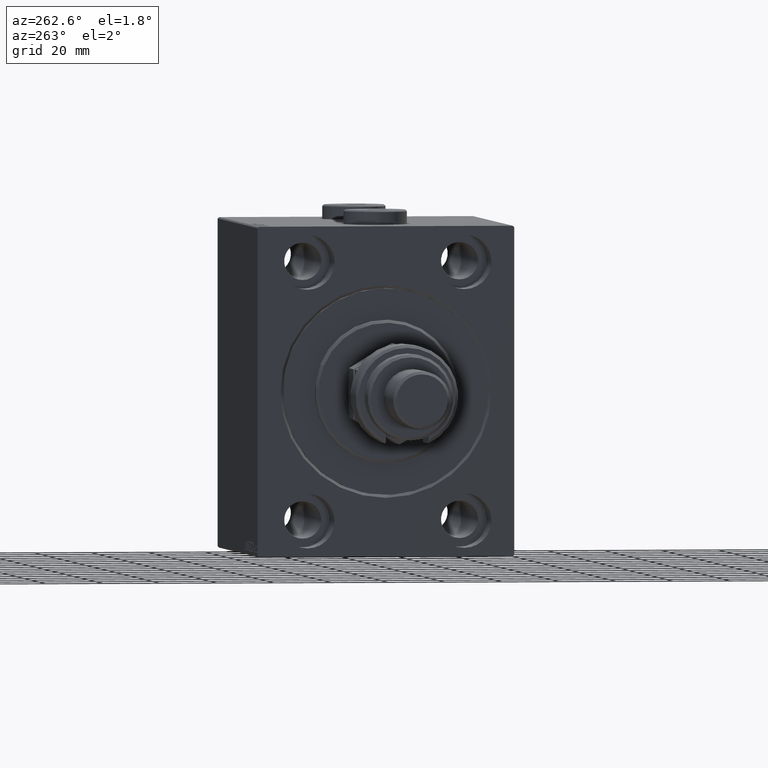
[diagram: clean part render]
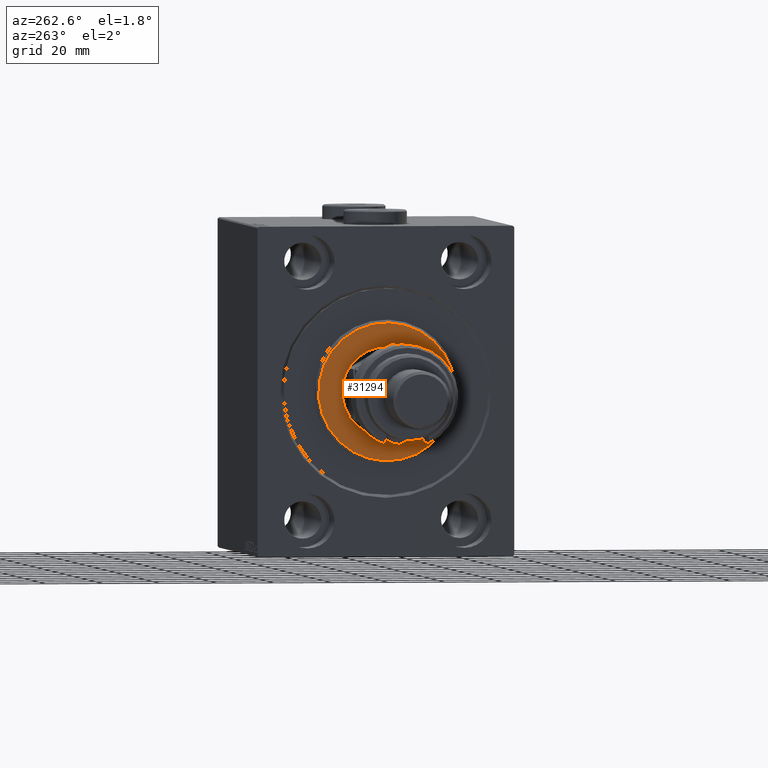
[diagram: same view with one face highlighted and labeled with its STEP entity id]
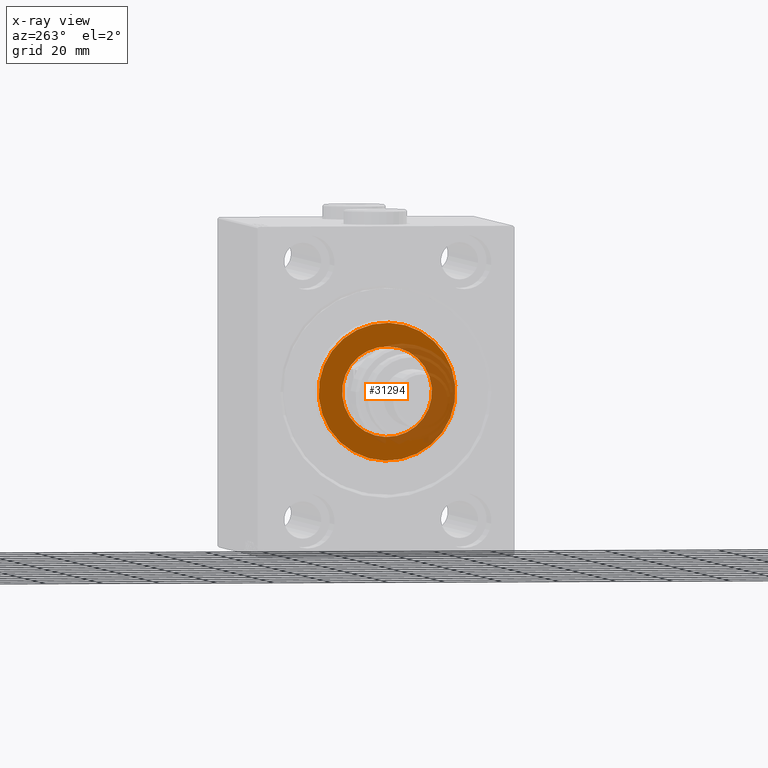
[diagram: x-ray of the same camera — body ghosted, the highlighted face saturated]
A machine part, auxiliary view. The second image highlights one B-rep face of the part: STEP entity #31294.
The next image is the same camera in x-ray: the body ghosted, the highlighted face saturated — about 32% of this face is hidden behind the body in this view.
In plain terms, the highlighted planar face has unit normal (-1, 0, 0).
Its self-contained STEP definition (entity closure, byte-faithful):
#612 = EDGE_LOOP ( 'NONE', ( #22765, #43480 ) ) ;
#1299 = AXIS2_PLACEMENT_3D ( 'NONE', #35026, #46217, #19915 ) ;
#1308 = EDGE_CURVE ( 'NONE', #8817, #27456, #16012, .T. ) ;
#1866 = CARTESIAN_POINT ( 'NONE',  ( 3.000000000000000000, 0.000000000000000000, 0.000000000000000000 ) ) ;
#7030 = DIRECTION ( 'NONE',  ( 0.000000000000000000, 0.000000000000000000, -1.000000000000000000 ) ) ;
#8817 = VERTEX_POINT ( 'NONE', #18185 ) ;
#9257 = ORIENTED_EDGE ( 'NONE', *, *, #44775, .T. ) ;
#12348 = FACE_OUTER_BOUND ( 'NONE', #30323, .T. ) ;
#12916 = DIRECTION ( 'NONE',  ( 0.000000000000000000, 0.000000000000000000, -1.000000000000000000 ) ) ;
#16012 = CIRCLE ( 'NONE', #38601, 15.75000000000000000 ) ;
#16708 = DIRECTION ( 'NONE',  ( -1.000000000000000000, 0.000000000000000000, -0.000000000000000000 ) ) ;
#17903 = VERTEX_POINT ( 'NONE', #41887 ) ;
#18185 = CARTESIAN_POINT ( 'NONE',  ( 3.000000000000000000, 1.928818708657080950E-15, -15.75000000000000000 ) ) ;
#18447 = CIRCLE ( 'NONE', #23118, 24.00000000000000711 ) ;
#19915 = DIRECTION ( 'NONE',  ( 0.000000000000000000, 0.000000000000000000, -1.000000000000000000 ) ) ;
#21523 = VERTEX_POINT ( 'NONE', #31495 ) ;
#22765 = ORIENTED_EDGE ( 'NONE', *, *, #27850, .T. ) ;
#23118 = AXIS2_PLACEMENT_3D ( 'NONE', #33102, #33592, #7030 ) ;
#27456 = VERTEX_POINT ( 'NONE', #43313 ) ;
#27850 = EDGE_CURVE ( 'NONE', #27456, #8817, #41681, .T. ) ;
#29288 = CARTESIAN_POINT ( 'NONE',  ( 3.000000000000000000, 0.000000000000000000, 0.000000000000000000 ) ) ;
#29649 = AXIS2_PLACEMENT_3D ( 'NONE', #46309, #31459, #12916 ) ;
#30323 = EDGE_LOOP ( 'NONE', ( #33992, #9257 ) ) ;
#31196 = EDGE_CURVE ( 'NONE', #21523, #17903, #18447, .T. ) ;
#31294 = ADVANCED_FACE ( 'NONE', ( #12348, #42329 ), #38442, .T. ) ;
#31459 = DIRECTION ( 'NONE',  ( 1.000000000000000000, -0.000000000000000000, 0.000000000000000000 ) ) ;
#31495 = CARTESIAN_POINT ( 'NONE',  ( 3.000000000000000000, 0.000000000000000000, 24.00000000000000711 ) ) ;
#31593 = DIRECTION ( 'NONE',  ( 0.000000000000000000, 0.000000000000000000, -1.000000000000000000 ) ) ;
#33102 = CARTESIAN_POINT ( 'NONE',  ( 3.000000000000000000, 0.000000000000000000, 0.000000000000000000 ) ) ;
#33592 = DIRECTION ( 'NONE',  ( 1.000000000000000000, -0.000000000000000000, 0.000000000000000000 ) ) ;
#33992 = ORIENTED_EDGE ( 'NONE', *, *, #31196, .T. ) ;
#35026 = CARTESIAN_POINT ( 'NONE',  ( 3.000000000000000000, 0.000000000000000000, 0.000000000000000000 ) ) ;
#36360 = DIRECTION ( 'NONE',  ( 0.000000000000000000, 0.000000000000000000, -1.000000000000000000 ) ) ;
#36853 = DIRECTION ( 'NONE',  ( -1.000000000000000000, 0.000000000000000000, -0.000000000000000000 ) ) ;
#38442 = PLANE ( 'NONE',  #1299 ) ;
#38601 = AXIS2_PLACEMENT_3D ( 'NONE', #29288, #36853, #36360 ) ;
#40885 = AXIS2_PLACEMENT_3D ( 'NONE', #1866, #16708, #31593 ) ;
#41681 = CIRCLE ( 'NONE', #40885, 15.75000000000000000 ) ;
#41887 = CARTESIAN_POINT ( 'NONE',  ( 3.000000000000000000, 3.000384657911015469E-15, -24.00000000000000711 ) ) ;
#42329 = FACE_BOUND ( 'NONE', #612, .T. ) ;
#43313 = CARTESIAN_POINT ( 'NONE',  ( 3.000000000000000000, 0.000000000000000000, 15.75000000000000000 ) ) ;
#43480 = ORIENTED_EDGE ( 'NONE', *, *, #1308, .T. ) ;
#44775 = EDGE_CURVE ( 'NONE', #17903, #21523, #45194, .T. ) ;
#45194 = CIRCLE ( 'NONE', #29649, 24.00000000000000711 ) ;
#46217 = DIRECTION ( 'NONE',  ( 1.000000000000000000, -0.000000000000000000, 0.000000000000000000 ) ) ;
#46309 = CARTESIAN_POINT ( 'NONE',  ( 3.000000000000000000, 0.000000000000000000, 0.000000000000000000 ) ) ;